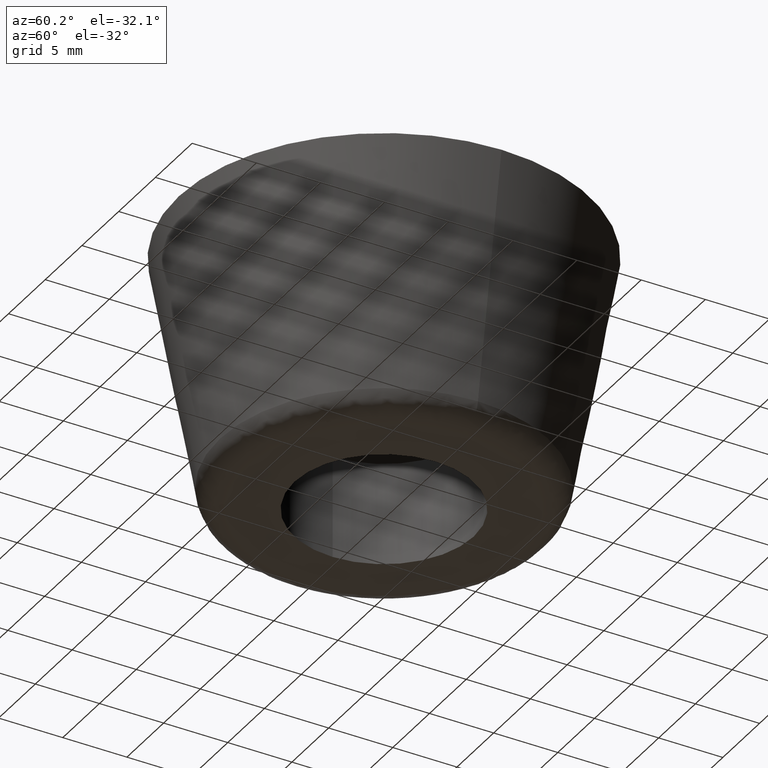
[diagram: clean part render]
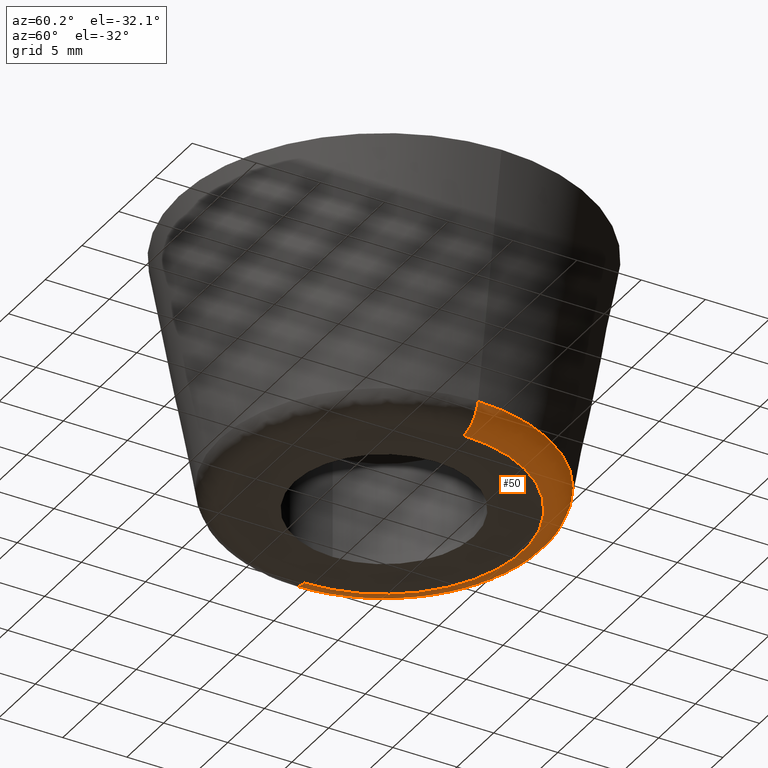
[diagram: same view with one face highlighted and labeled with its STEP entity id]
A machine part, auxiliary view. The second image highlights one B-rep face of the part: STEP entity #50.
In plain terms, the highlighted face is a freeform B-spline surface patch.
Its self-contained STEP definition (entity closure, byte-faithful):
#50=ADVANCED_FACE('',(#155),#154,.T.);
#154=( BOUNDED_SURFACE() B_SPLINE_SURFACE( 2,2,((#250,#251,#252,#253,#254),(#255,#256,#257,#258,#259),(#260,#261,#262,#263,#264),(#265,#266,#267,#268,#269),(#270,#271,#272,#273,#274)), .UNSPECIFIED.,.F.,.F.,.F.) B_SPLINE_SURFACE_WITH_KNOTS((3,2,3),(3,2,3),(0.00000000000E+00,5.00000000000E-01,1.00000000000E+00),(0.00000000000E+00,5.00000000000E-01,1.00000000000E+00), .UNSPECIFIED. ) GEOMETRIC_REPRESENTATION_ITEM() RATIONAL_B_SPLINE_SURFACE(((1.00000000000E+00,7.65630567491E-01,1.00000000000E+00,7.65630567491E-01,1.00000000000E+00),(7.07106781187E-01,5.41382566156E-01,7.07106781187E-01,5.41382566156E-01,7.07106781187E-01),(1.00000000000E+00,7.65630567491E-01,1.00000000000E+00,7.65630567491E-01,1.00000000000E+00),(7.07106781187E-01,5.41382566156E-01,7.07106781187E-01,5.41382566156E-01,7.07106781187E-01),(1.00000000000E+00,7.65630567491E-01,1.00000000000E+00,7.65630567491E-01,1.00000000000E+00))) REPRESENTATION_ITEM('') SURFACE() );
#155=FACE_OUTER_BOUND('',#275,.T.);
#250=CARTESIAN_POINT('',(-1.27896668839E+01,-5.17282233453E-20,-1.83447606635E+01));
#251=CARTESIAN_POINT('',(-1.25000000000E+01,-5.05566562199E-20,-2.00000000000E+01));
#252=CARTESIAN_POINT('',(-1.08196059496E+01,-4.37602478742E-20,-2.00000000000E+01));
#253=CARTESIAN_POINT('',(-9.13921189915E+00,-3.69638395285E-20,-2.00000000000E+01));
#254=CARTESIAN_POINT('',(-8.84954501526E+00,-3.57922724032E-20,-1.83447606635E+01));
#255=CARTESIAN_POINT('',(-1.27896668839E+01,1.27896668839E+01,-1.83447606635E+01));
#256=CARTESIAN_POINT('',(-1.25000000000E+01,1.25000000000E+01,-2.00000000000E+01));
#257=CARTESIAN_POINT('',(-1.08196059496E+01,1.08196059496E+01,-2.00000000000E+01));
#258=CARTESIAN_POINT('',(-9.13921189915E+00,9.13921189915E+00,-2.00000000000E+01));
#259=CARTESIAN_POINT('',(-8.84954501526E+00,8.84954501526E+00,-1.83447606635E+01));
#260=CARTESIAN_POINT('',(-3.54776624783E-14,1.27896668839E+01,-1.83447606635E+01));
#261=CARTESIAN_POINT('',(-3.54599243257E-14,1.25000000000E+01,-2.00000000000E+01));
#262=CARTESIAN_POINT('',(-3.53570230695E-14,1.08196059496E+01,-2.00000000000E+01));
#263=CARTESIAN_POINT('',(-3.52541218133E-14,9.13921189915E+00,-2.00000000000E+01));
#264=CARTESIAN_POINT('',(-3.52363836607E-14,8.84954501526E+00,-1.83447606635E+01));
#265=CARTESIAN_POINT('',(1.27896668839E+01,1.27896668839E+01,-1.83447606635E+01));
#266=CARTESIAN_POINT('',(1.25000000000E+01,1.25000000000E+01,-2.00000000000E+01));
#267=CARTESIAN_POINT('',(1.08196059496E+01,1.08196059496E+01,-2.00000000000E+01));
#268=CARTESIAN_POINT('',(9.13921189915E+00,9.13921189915E+00,-2.00000000000E+01));
#269=CARTESIAN_POINT('',(8.84954501526E+00,8.84954501526E+00,-1.83447606635E+01));
#270=CARTESIAN_POINT('',(1.27896668839E+01,1.56633418937E-15,-1.83447606635E+01));
#271=CARTESIAN_POINT('',(1.25000000000E+01,1.53085905559E-15,-2.00000000000E+01));
#272=CARTESIAN_POINT('',(1.08196059496E+01,1.32506333967E-15,-2.00000000000E+01));
#273=CARTESIAN_POINT('',(9.13921189915E+00,1.11926762374E-15,-2.00000000000E+01));
#274=CARTESIAN_POINT('',(8.84954501526E+00,1.08379248996E-15,-1.83447606635E+01));
#275=EDGE_LOOP('',(#316,#317,#318,#319));
#316=ORIENTED_EDGE('',*,*,#335,.T.);
#317=ORIENTED_EDGE('',*,*,#340,.T.);
#318=ORIENTED_EDGE('',*,*,#328,.F.);
#319=ORIENTED_EDGE('',*,*,#341,.F.);
#328=EDGE_CURVE('',#398,#399,#400,.T.);
#335=EDGE_CURVE('',#426,#433,#446,.T.);
#340=EDGE_CURVE('',#433,#399,#476,.T.);
#341=EDGE_CURVE('',#426,#398,#482,.T.);
#398=VERTEX_POINT('',#528);
#399=VERTEX_POINT('',#529);
#400=CIRCLE('',#533,1.08196059496E+01);
#426=VERTEX_POINT('',#548);
#433=VERTEX_POINT('',#551);
#446=CIRCLE('',#561,1.27896668839E+01);
#476=(BOUNDED_CURVE() B_SPLINE_CURVE(2,(#570,#571,#572),.UNSPECIFIED.,.F.,.F.) B_SPLINE_CURVE_WITH_KNOTS((3,3),(0.00000000000E+00,5.00000000000E-01),.UNSPECIFIED.) CURVE() GEOMETRIC_REPRESENTATION_ITEM() RATIONAL_B_SPLINE_CURVE((1.00000000000E+00,7.65630567491E-01,1.00000000000E+00)) REPRESENTATION_ITEM('') );
#482=(BOUNDED_CURVE() B_SPLINE_CURVE(3,(#573,#574,#575,#576,#577),.UNSPECIFIED.,.F.,.F.) B_SPLINE_CURVE_WITH_KNOTS((4,1,4),(0.00000000000E+00,2.50000001530E-01,5.00000002731E-01),.UNSPECIFIED.) CURVE() GEOMETRIC_REPRESENTATION_ITEM() RATIONAL_B_SPLINE_CURVE((1.00000000000E+00,1.00000000000E+00,1.00000000000E+00,1.00000000000E+00,1.00000000000E+00)) REPRESENTATION_ITEM('') );
#528=CARTESIAN_POINT('',(-1.08196059496E+01,0.00000000000E+00,-2.00000000000E+01));
#529=CARTESIAN_POINT('',(1.08196059496E+01,5.92118946467E-16,-2.00000000000E+01));
#530=CARTESIAN_POINT('',(-3.55271367880E-14,0.00000000000E+00,-2.00000000000E+01));
#531=DIRECTION('',(-0.00000000000E+00,0.00000000000E+00,-1.00000000000E+00));
#532=DIRECTION('',(-1.00000000000E+00,-1.22460635382E-16,0.00000000000E+00));
#533=AXIS2_PLACEMENT_3D('',#530,#531,#532);
#548=CARTESIAN_POINT('',(-1.27896668839E+01,0.00000000000E+00,-1.83447606635E+01));
#551=CARTESIAN_POINT('',(1.27896668839E+01,0.00000000000E+00,-1.83447606635E+01));
#558=CARTESIAN_POINT('',(-3.55271367880E-14,0.00000000000E+00,-1.83447606635E+01));
#559=DIRECTION('',(-0.00000000000E+00,0.00000000000E+00,-1.00000000000E+00));
#560=DIRECTION('',(-1.00000000000E+00,-1.22460635382E-16,0.00000000000E+00));
#561=AXIS2_PLACEMENT_3D('',#558,#559,#560);
#570=CARTESIAN_POINT('',(1.27896668839E+01,-1.56623073293E-15,-1.83447606635E+01));
#571=CARTESIAN_POINT('',(1.25000000000E+01,-1.53075794228E-15,-2.00000000000E+01));
#572=CARTESIAN_POINT('',(1.08196059496E+01,-1.32497581917E-15,-2.00000000000E+01));
#573=CARTESIAN_POINT('',(-1.27896668839E+01,1.77635683940E-15,-1.83447606635E+01));
#574=CARTESIAN_POINT('',(-1.27126759136E+01,1.71371037529E-15,-1.88007398711E+01));
#575=CARTESIAN_POINT('',(-1.22149804941E+01,1.51951110708E-15,-1.96607706444E+01));
#576=CARTESIAN_POINT('',(-1.12820310758E+01,1.28371762880E-15,-2.00027633989E+01));
#577=CARTESIAN_POINT('',(-1.08196059355E+01,1.18423788950E-15,-2.00000000000E+01));